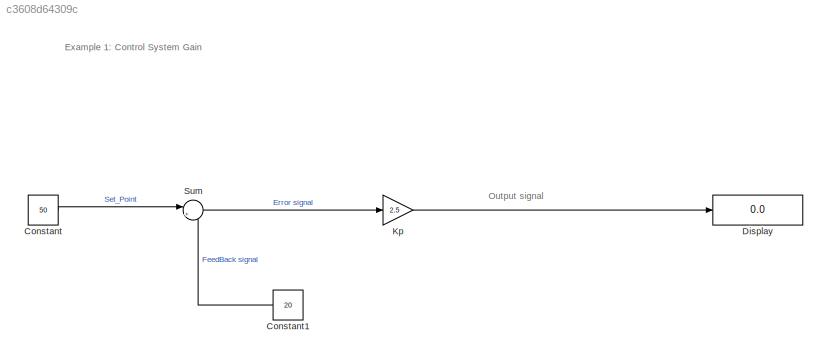
MODEL slx_c3608d64309c
KIND model
CONFIG AbsTol = auto
CONFIG EnableMultiTasking = off
CONFIG FixedStep = auto
CONFIG MaxStep = auto
CONFIG MinStep = auto
CONFIG RelTol = 1e-3
CONFIG SampleTimeConstraint = Unconstrained
CONFIG SolverName = VariableStepAuto
CONFIG StartTime = 0.0
CONFIG StopTime = 10.0
BLOCK [Constant] Constant
  Value = 50
BLOCK [Constant] Constant1
  NameLocation = top
  Value = 20
BLOCK [Display] Display
  Decimation = 1
  Ports = [1]
BLOCK [Gain] Kp
  Gain = 2.5
BLOCK [Sum] Sum
  Inputs = |+-
  Ports = [2, 1]
ANNOTATION (root): Example 1: Control System Gain
ANNOTATION (root): Output signal
LINE Constant1:1 -> Sum:2
LINE Constant:1 -> Sum:1
LINE Kp:1 -> Display:1
LINE Sum:1 -> Kp:1
